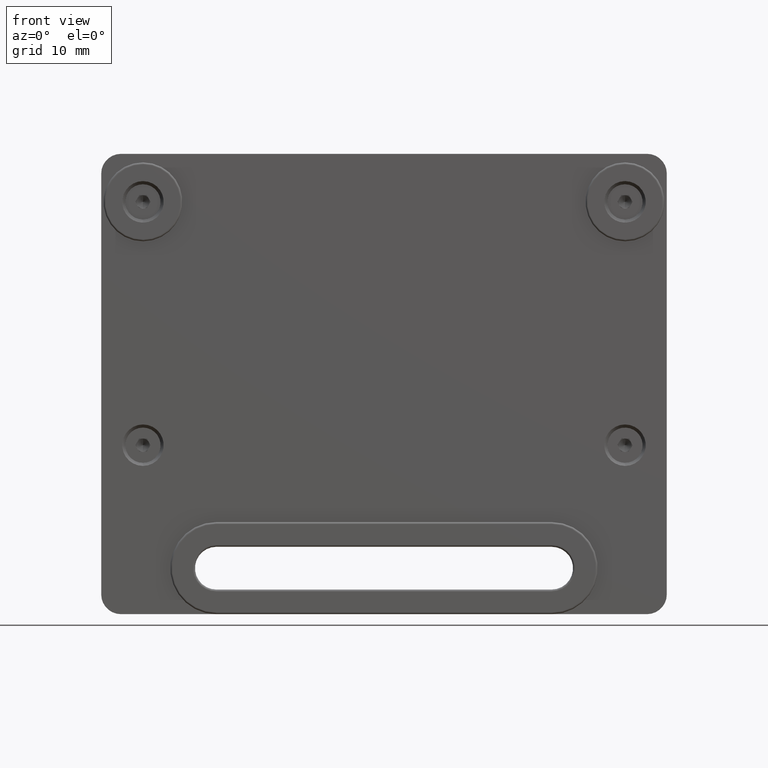
[diagram: clean part render]
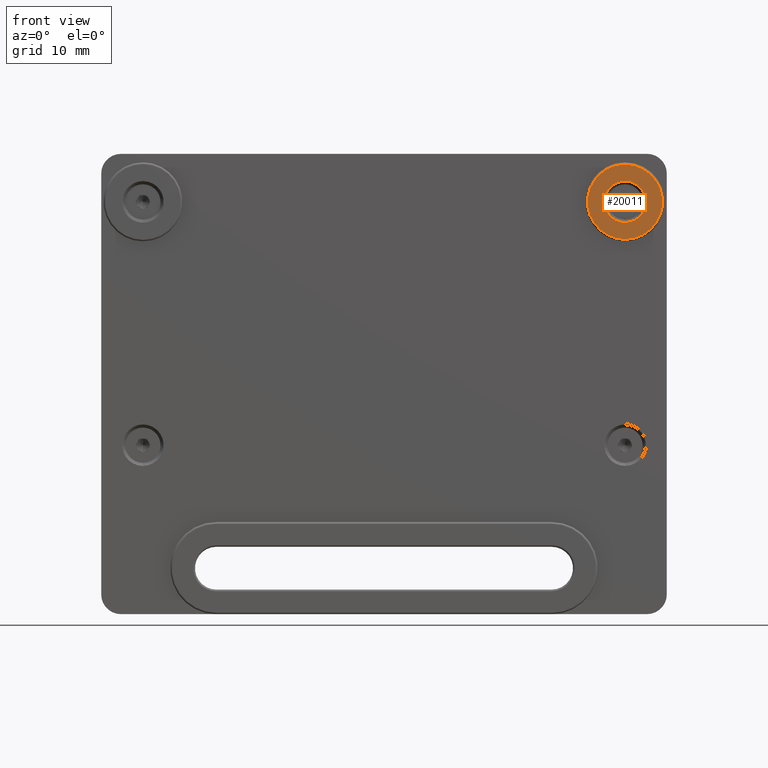
[diagram: same view with one face highlighted and labeled with its STEP entity id]
A machine part, front view. The second image highlights one B-rep face of the part: STEP entity #20011.
In plain terms, the highlighted planar face has unit normal (0, -1, 0).
Its self-contained STEP definition (entity closure, byte-faithful):
#1503 = DIRECTION ( 'NONE',  ( -0.000000000000000000, -1.000000000000000000, -0.000000000000000000 ) ) ;
#3233 = ORIENTED_EDGE ( 'NONE', *, *, #26395, .F. ) ;
#3520 = EDGE_LOOP ( 'NONE', ( #3233, #29192 ) ) ;
#3996 = CARTESIAN_POINT ( 'NONE',  ( 36.65000000000000568, 0.000000000000000000, 24.20000000000000284 ) ) ;
#4414 = DIRECTION ( 'NONE',  ( 0.000000000000000000, 0.000000000000000000, -1.000000000000000000 ) ) ;
#4754 = VERTEX_POINT ( 'NONE', #21208 ) ;
#5034 = CARTESIAN_POINT ( 'NONE',  ( -39.99999999999999289, 0.000000000000000000, -41.20000000000000284 ) ) ;
#5104 = AXIS2_PLACEMENT_3D ( 'NONE', #21302, #30801, #4414 ) ;
#6538 = DIRECTION ( 'NONE',  ( -0.000000000000000000, -1.000000000000000000, -0.000000000000000000 ) ) ;
#7206 = PLANE ( 'NONE',  #20807 ) ;
#8119 = CIRCLE ( 'NONE', #12107, 3.149999999999999911 ) ;
#9508 = CIRCLE ( 'NONE', #13006, 3.149999999999999911 ) ;
#10449 = ORIENTED_EDGE ( 'NONE', *, *, #11568, .T. ) ;
#10528 = CIRCLE ( 'NONE', #11020, 5.699999999999996625 ) ;
#10725 = CARTESIAN_POINT ( 'NONE',  ( 36.65000000000000568, 0.000000000000000000, 18.50000000000000711 ) ) ;
#10778 = EDGE_CURVE ( 'NONE', #19528, #4754, #10528, .T. ) ;
#11020 = AXIS2_PLACEMENT_3D ( 'NONE', #24483, #14986, #12777 ) ;
#11568 = EDGE_CURVE ( 'NONE', #4754, #19528, #21115, .T. ) ;
#12107 = AXIS2_PLACEMENT_3D ( 'NONE', #10725, #1503, #20304 ) ;
#12389 = DIRECTION ( 'NONE',  ( 0.000000000000000000, -1.000000000000000000, 0.000000000000000000 ) ) ;
#12777 = DIRECTION ( 'NONE',  ( 0.000000000000000000, 0.000000000000000000, -1.000000000000000000 ) ) ;
#13006 = AXIS2_PLACEMENT_3D ( 'NONE', #15829, #6538, #25605 ) ;
#13998 = CARTESIAN_POINT ( 'NONE',  ( 36.65000000000000568, 0.000000000000000000, 15.35000000000000675 ) ) ;
#14727 = FACE_OUTER_BOUND ( 'NONE', #27581, .T. ) ;
#14869 = CARTESIAN_POINT ( 'NONE',  ( 36.65000000000000568, 0.000000000000000000, 21.65000000000000568 ) ) ;
#14986 = DIRECTION ( 'NONE',  ( -0.000000000000000000, -1.000000000000000000, 0.000000000000000000 ) ) ;
#15383 = EDGE_CURVE ( 'NONE', #29414, #19637, #9508, .T. ) ;
#15829 = CARTESIAN_POINT ( 'NONE',  ( 36.65000000000000568, 0.000000000000000000, 18.50000000000000711 ) ) ;
#19528 = VERTEX_POINT ( 'NONE', #3996 ) ;
#19637 = VERTEX_POINT ( 'NONE', #13998 ) ;
#20011 = ADVANCED_FACE ( 'NONE', ( #14727, #28911 ), #7206, .T. ) ;
#20304 = DIRECTION ( 'NONE',  ( 0.000000000000000000, 0.000000000000000000, -1.000000000000000000 ) ) ;
#20807 = AXIS2_PLACEMENT_3D ( 'NONE', #5034, #12389, #29690 ) ;
#21115 = CIRCLE ( 'NONE', #5104, 5.699999999999996625 ) ;
#21208 = CARTESIAN_POINT ( 'NONE',  ( 36.65000000000000568, 0.000000000000000000, 12.80000000000000959 ) ) ;
#21302 = CARTESIAN_POINT ( 'NONE',  ( 36.65000000000000568, 0.000000000000000000, 18.50000000000000711 ) ) ;
#24483 = CARTESIAN_POINT ( 'NONE',  ( 36.65000000000000568, 0.000000000000000000, 18.50000000000000711 ) ) ;
#25569 = ORIENTED_EDGE ( 'NONE', *, *, #10778, .T. ) ;
#25605 = DIRECTION ( 'NONE',  ( 0.000000000000000000, 0.000000000000000000, -1.000000000000000000 ) ) ;
#26395 = EDGE_CURVE ( 'NONE', #19637, #29414, #8119, .T. ) ;
#27581 = EDGE_LOOP ( 'NONE', ( #10449, #25569 ) ) ;
#28911 = FACE_BOUND ( 'NONE', #3520, .T. ) ;
#29192 = ORIENTED_EDGE ( 'NONE', *, *, #15383, .F. ) ;
#29414 = VERTEX_POINT ( 'NONE', #14869 ) ;
#29690 = DIRECTION ( 'NONE',  ( 0.000000000000000000, -0.000000000000000000, -1.000000000000000000 ) ) ;
#30801 = DIRECTION ( 'NONE',  ( -0.000000000000000000, -1.000000000000000000, 0.000000000000000000 ) ) ;